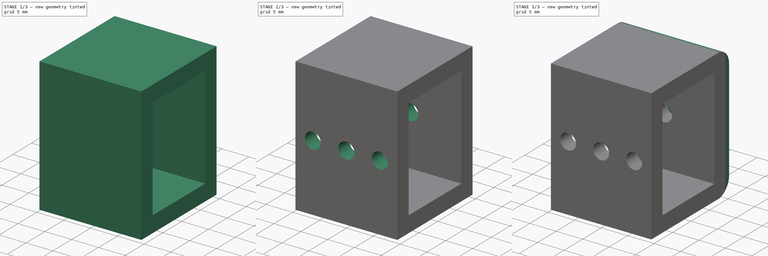
[diagram: build sequence overview — one tinted view per stage of 3, left to right]
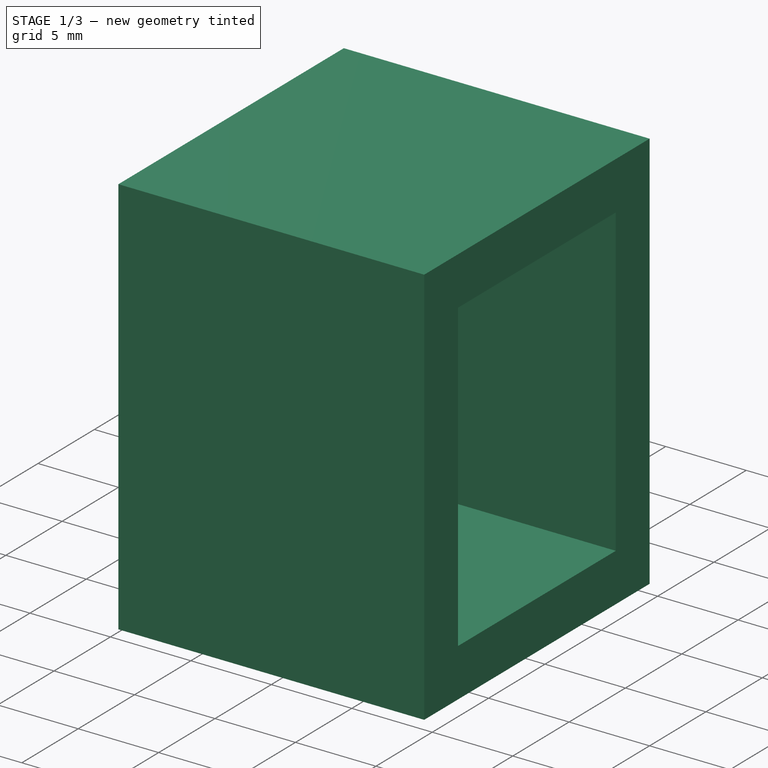
[diagram: stage 1 of 3 — iso view after this stage's code; geometry added in this stage tinted green]
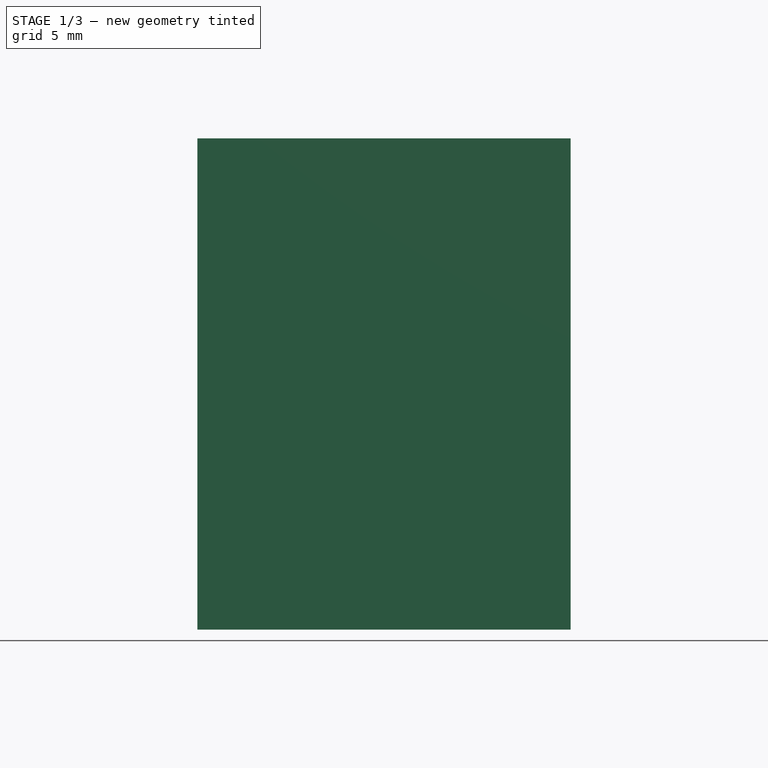
[diagram: stage 1 of 3 — front view after this stage's code; geometry added in this stage tinted green]
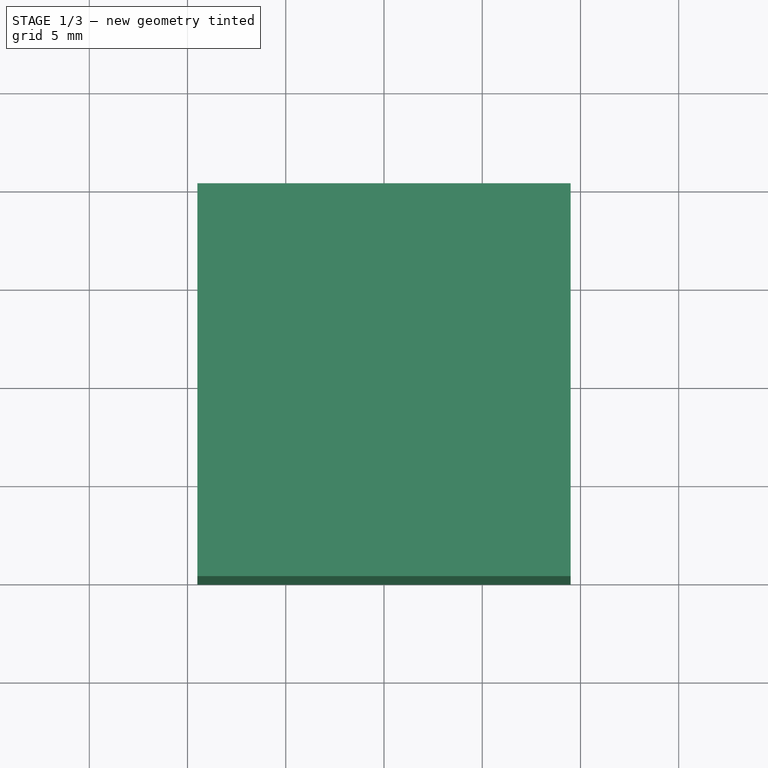
[diagram: stage 1 of 3 — top view after this stage's code; geometry added in this stage tinted green]
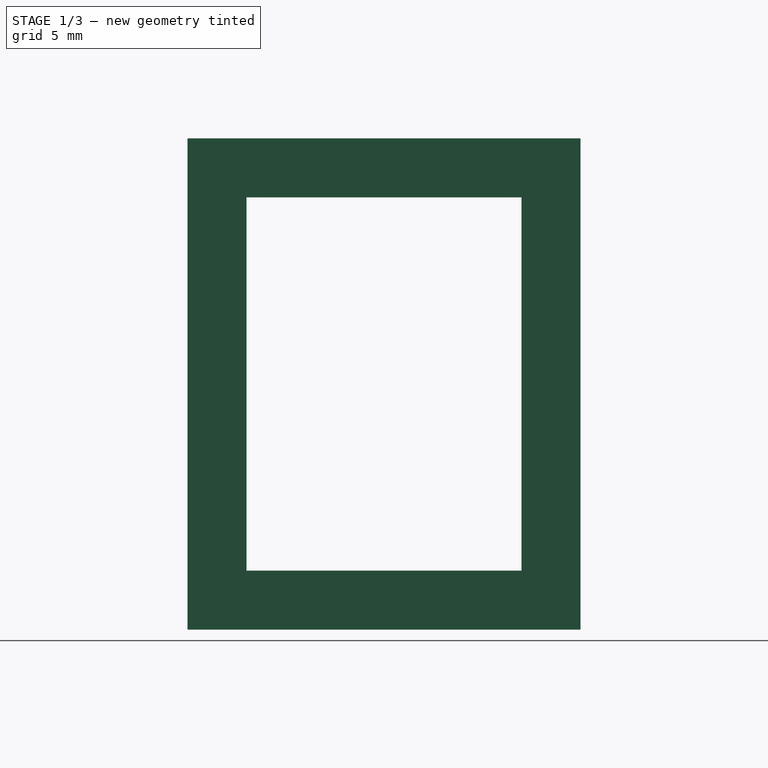
[diagram: stage 1 of 3 — right view after this stage's code; geometry added in this stage tinted green]
FCSTD DOCUMENT  (FreeCAD 0.18R14555 (Git shallow))
Label: idler-mount
License: All rights reserved
LicenseURL: http://en.wikipedia.org/wiki/All_rights_reserved
objects: Sketcher::SketchObject×5, PartDesign::Pocket×3, PartDesign::Pad×2, PartDesign::Thickness×1, PartDesign::Chamfer×1, PartDesign::Body×1
note: 18 computed .brp shape members not serialized (recipe doc carries the construction recipe); baked Part::Feature solids carry a one-line shape summary decoded from their .brp

FEATURE [Sketcher::SketchObject] Sketch
  MapMode = 5
  Support = -> [XY_Plane]
  sketch-geometry (14):
    g0: LineSegment StartX=-9.5 StartY=7 StartZ=0 EndX=9.5 EndY=7 EndZ=0
    g1: LineSegment StartX=9.5 StartY=7 StartZ=0 EndX=9.5 EndY=-7 EndZ=0
    g2: LineSegment StartX=9.5 StartY=-7 StartZ=0 EndX=-9.5 EndY=-7 EndZ=0
    g3: LineSegment StartX=-9.5 StartY=-7 StartZ=0 EndX=-9.5 EndY=7 EndZ=0
    g4: LineSegment [constr] StartX=-9.5 StartY=7 StartZ=0 EndX=0 EndY=-9e-16 EndZ=0
    g5: LineSegment [constr] StartX=0 StartY=0 StartZ=0 EndX=-9.5 EndY=-7 EndZ=0
    g6: LineSegment [constr] StartX=0 StartY=0 StartZ=0 EndX=9.5 EndY=7 EndZ=0
    g7: LineSegment [constr] StartX=-6.5 StartY=4 StartZ=0 EndX=6.5 EndY=4 EndZ=0
    g8: LineSegment [constr] StartX=6.5 StartY=4 StartZ=0 EndX=6.5 EndY=-4 EndZ=0
    g9: LineSegment [constr] StartX=6.5 StartY=-4 StartZ=0 EndX=-6.5 EndY=-4 EndZ=0
    g10: LineSegment [constr] StartX=-6.5 StartY=-4 StartZ=0 EndX=-6.5 EndY=4 EndZ=0
    g11: LineSegment [constr] StartX=0 StartY=0 StartZ=0 EndX=-6.5 EndY=4 EndZ=0
    g12: LineSegment [constr] StartX=0 StartY=0 StartZ=0 EndX=-6.5 EndY=-4 EndZ=0
    g13: LineSegment [constr] StartX=0 StartY=0 StartZ=0 EndX=6.5 EndY=4 EndZ=0
  constraints (36):
    c: Coincident(g0,g1)
    c: Coincident(g1,g2)
    c: Coincident(g2,g3)
    c: Coincident(g3,g0)
    c: Horizontal(g0)
    c: Horizontal(g2)
    c: Vertical(g1)
    c: Vertical(g3)
    c: Coincident(g4,g0)
    c: Coincident(g4,g-1)
    c: Coincident(g5,g-1)
    c: Coincident(g5,g2)
    c: Coincident(g6,g-1)
    c: Coincident(g6,g0)
    c: Equal(g5,g4)
    c: Equal(g4,g6)
    c: Coincident(g7,g8)
    c: Coincident(g8,g9)
    c: Coincident(g9,g10)
    c: Coincident(g10,g7)
    c: Horizontal(g7)
    c: Horizontal(g9)
    c: Vertical(g8)
    c: Vertical(g10)
    c: Coincident(g11,g-1)
    c: Coincident(g11,g7)
    c: Coincident(g12,g-1)
    c: Coincident(g12,g9)
    c: Coincident(g13,g-1)
    c: Coincident(g13,g7)
    c: Equal(g11,g13)
    c: Equal(g13,g12)
    c: DistanceY(g8,g8) = 8
    c: DistanceX(g7,g7) = 13
    c: DistanceY(g7,g0) = 3
    c: DistanceX(g7,g0) = 3
FEATURE [PartDesign::Pad] Pad
  Length = 19
  Length2 = 100
  Profile = -> Sketch
  Type = 0
FEATURE [PartDesign::Thickness] Thickness
  Base = -> Pad [Face4,Face2]
  BaseFeature = -> Pad
  Join = 1
  Mode = 0
  Value = 3
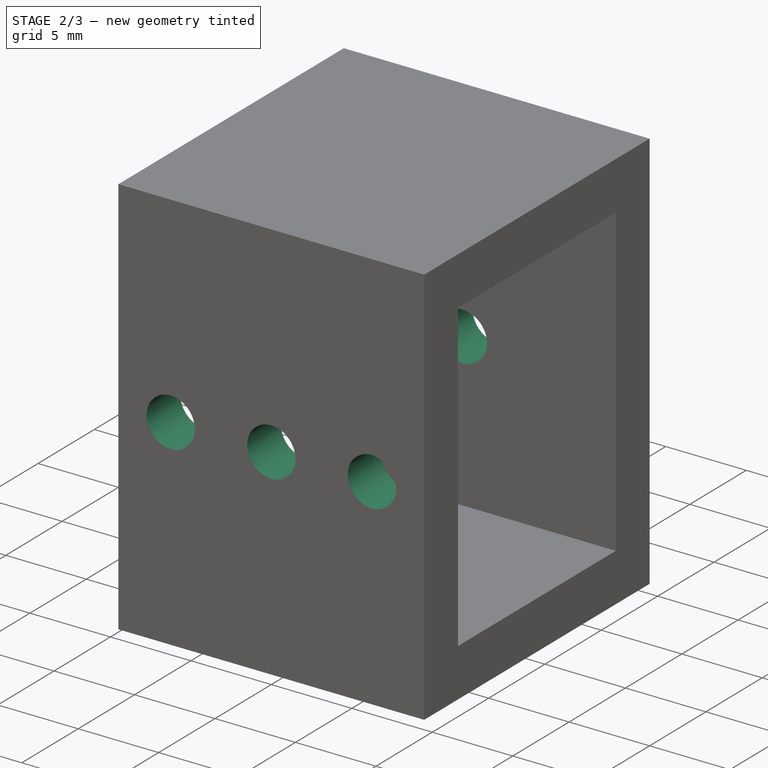
[diagram: stage 2 of 3 — iso view after this stage's code; geometry added in this stage tinted green]
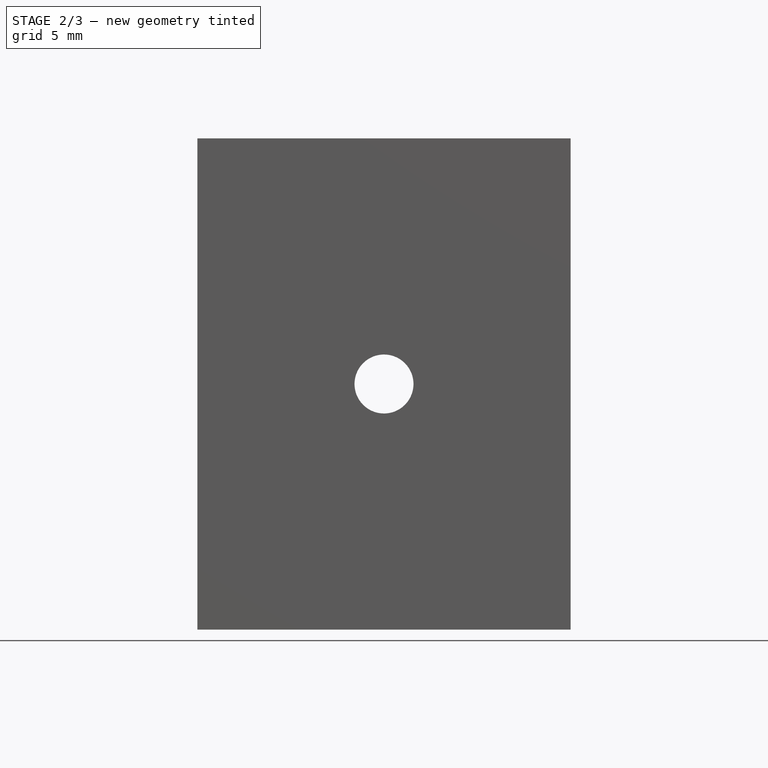
[diagram: stage 2 of 3 — front view after this stage's code; geometry added in this stage tinted green]
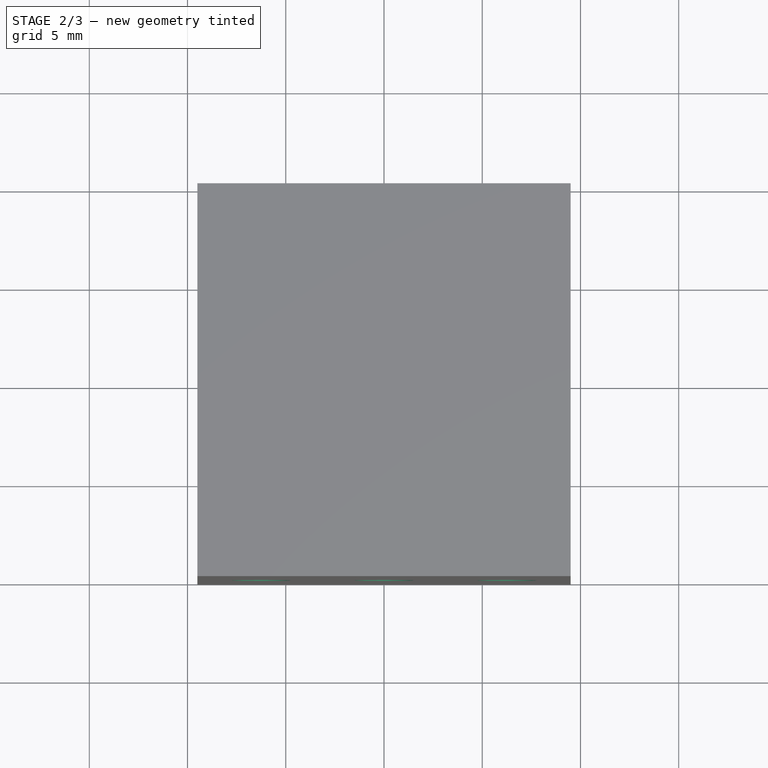
[diagram: stage 2 of 3 — top view after this stage's code; geometry added in this stage tinted green]
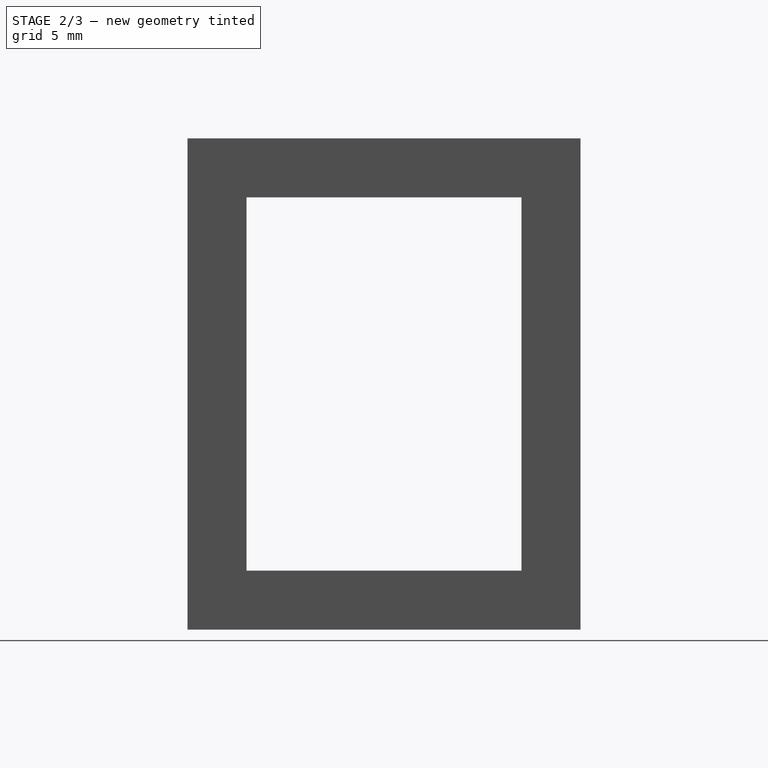
[diagram: stage 2 of 3 — right view after this stage's code; geometry added in this stage tinted green]
FEATURE [Sketcher::SketchObject] Sketch001
  ExternalGeometry = -> [Thickness]
  MapMode = 5
  Placement = pos=(0,-10,0) rot=(1,0,0;1.5708rad)
  Support = -> [Thickness]
  sketch-geometry (3):
    g0: LineSegment [constr] StartX=-9.5 StartY=22 StartZ=0 EndX=9.5 EndY=-3 EndZ=0
    g1: LineSegment [constr] StartX=-9.5 StartY=-3 StartZ=0 EndX=9.5 EndY=22 EndZ=0
    g2: Circle CenterX=-1.283e-13 CenterY=9.5 CenterZ=0 NormalX=0 NormalY=0 NormalZ=1 AngleXU=0 Radius=1.5
  constraints (7):
    c: Coincident(g0,g-3)
    c: Coincident(g0,g-4)
    c: Coincident(g1,g-3)
    c: Coincident(g1,g-4)
    c: PointOnObject(g2,g0)
    c: PointOnObject(g2,g1)
    c: Radius(g2) = 1.5
FEATURE [PartDesign::Pocket] Pocket
  BaseFeature = -> Thickness
  Length = 0
  Length2 = 100
  Profile = -> Sketch001
  Type = 3
  UpToFace = -> Thickness [Face6]
FEATURE [Sketcher::SketchObject] Sketch002
  ExternalGeometry = -> [Pocket]
  MapMode = 5
  Placement = pos=(0,-10,0) rot=(1,0,0;1.5708rad)
  Support = -> [Pocket]
  sketch-geometry (8):
    g0: LineSegment [constr] StartX=-9.5 StartY=22 StartZ=0 EndX=9.5 EndY=-3 EndZ=0
    g1: LineSegment [constr] StartX=-9.5 StartY=-3 StartZ=0 EndX=9.5 EndY=22 EndZ=0
    g2: LineSegment [constr] StartX=-9.5 StartY=9.5 StartZ=0 EndX=9.5 EndY=9.5 EndZ=0
    g3: GeomPoint X=-1.279e-13 Y=9.5 Z=0
    g4: Circle CenterX=-6.25 CenterY=9.5 CenterZ=0 NormalX=0 NormalY=0 NormalZ=1 AngleXU=0 Radius=1.5
    g5: Circle CenterX=6.25 CenterY=9.5 CenterZ=0 NormalX=0 NormalY=0 NormalZ=1 AngleXU=0 Radius=1.5
    g6: LineSegment [constr] StartX=-6.25 StartY=9.5 StartZ=0 EndX=-9.5 EndY=22 EndZ=0
    g7: LineSegment [constr] StartX=9.5 StartY=22 StartZ=0 EndX=6.25 EndY=9.5 EndZ=0
  constraints (20):
    c: Coincident(g0,g-3)
    c: Coincident(g0,g-4)
    c: Coincident(g1,g-4)
    c: Coincident(g1,g-3)
    c: PointOnObject(g2,g-3)
    c: PointOnObject(g2,g-4)
    c: Horizontal(g2)
    c: PointOnObject(g3,g0)
    c: PointOnObject(g3,g1)
    c: PointOnObject(g3,g2)
    c: PointOnObject(g4,g2)
    c: PointOnObject(g5,g2)
    c: Coincident(g6,g0)
    c: Coincident(g7,g1)
    c: Coincident(g7,g5)
    c: Coincident(g6,g4)
    c: Equal(g4,g5)
    c: Radius(g4) = 1.5
    c: Equal(g6,g7)
    c: DistanceX(g4,g5) = 12.5
FEATURE [PartDesign::Pocket] Pocket001
  BaseFeature = -> Pocket
  Length = 3
  Length2 = 100
  Profile = -> Sketch002
  Type = 0
FEATURE [PartDesign::Chamfer] Chamfer
  Base = -> Pocket001 [Edge7,Edge8,Edge1,Edge6]
  BaseFeature = -> Pocket001
  Size = 1.5
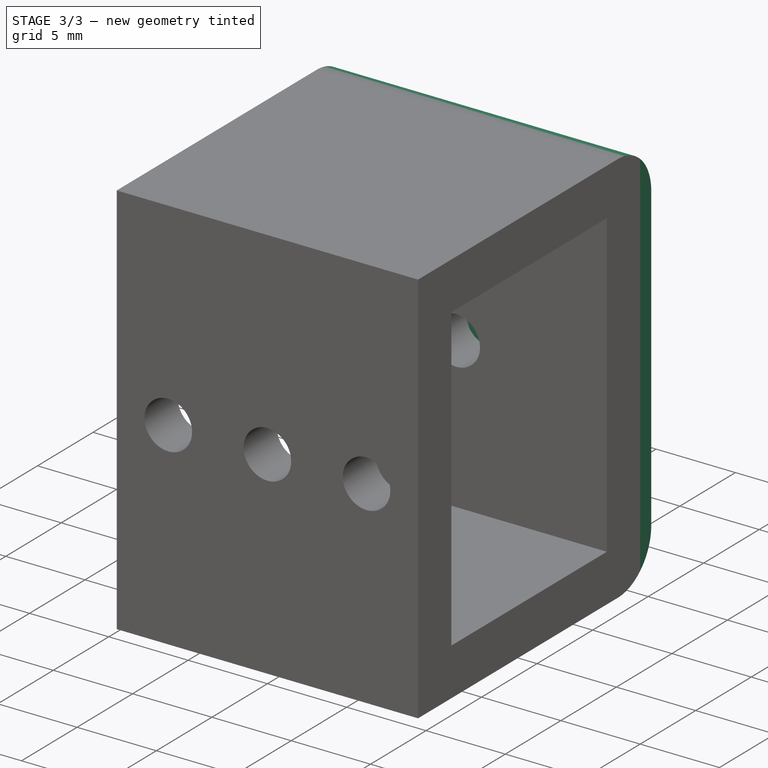
[diagram: stage 3 of 3 — iso view after this stage's code; geometry added in this stage tinted green]
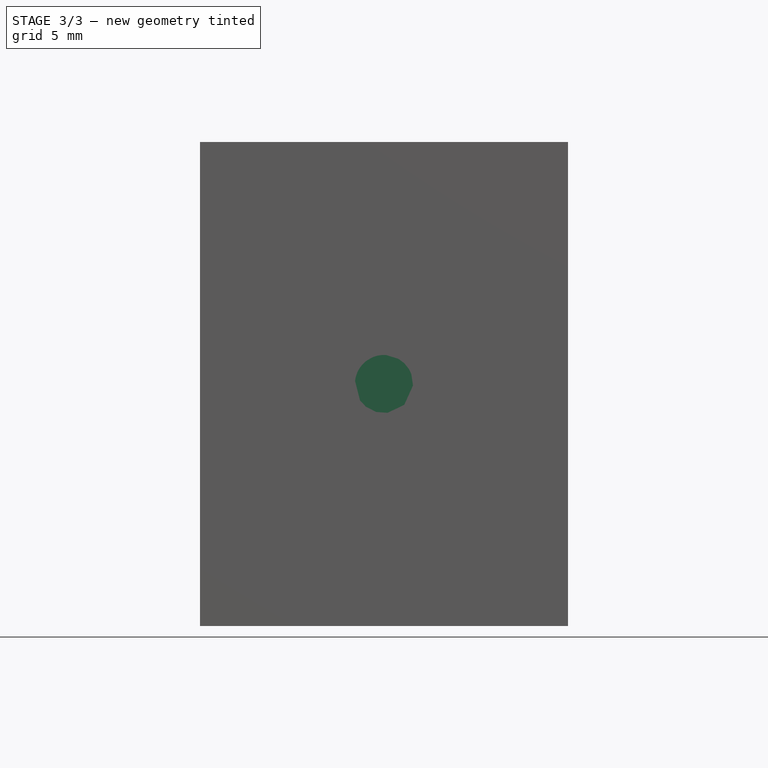
[diagram: stage 3 of 3 — front view after this stage's code; geometry added in this stage tinted green]
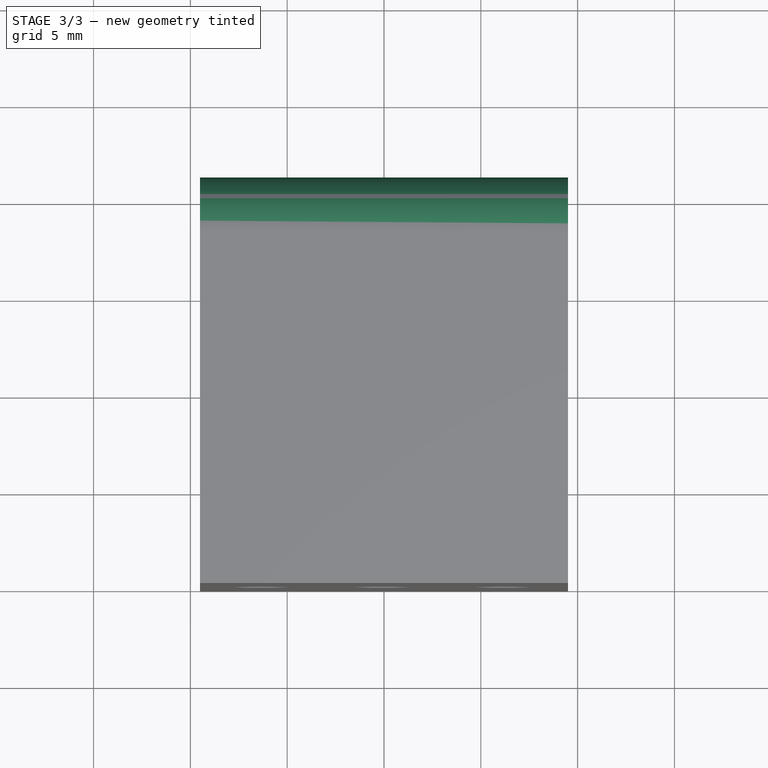
[diagram: stage 3 of 3 — top view after this stage's code; geometry added in this stage tinted green]
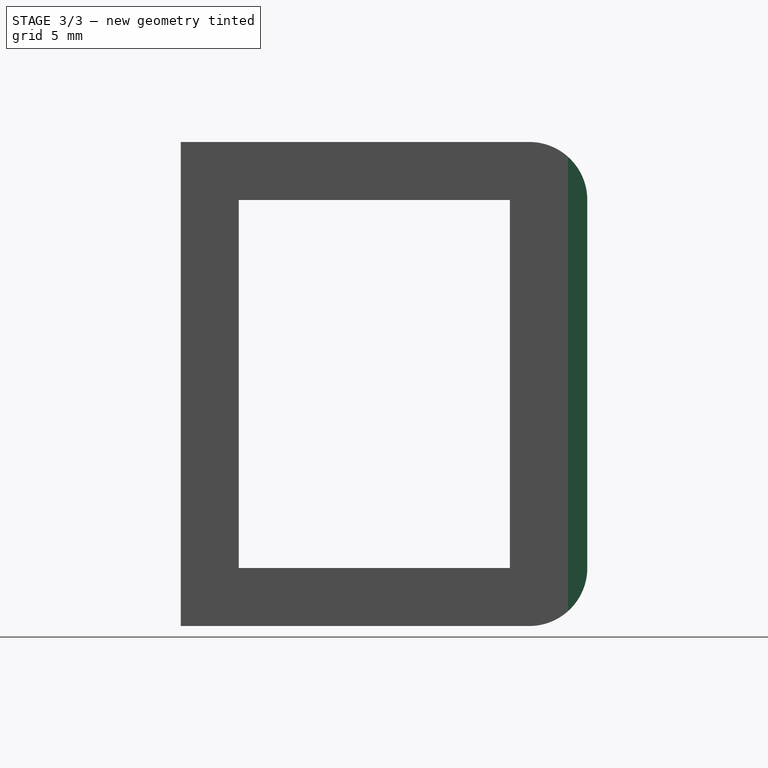
[diagram: stage 3 of 3 — right view after this stage's code; geometry added in this stage tinted green]
FEATURE [Sketcher::SketchObject] Sketch003
  ExternalGeometry = -> [Chamfer]
  MapMode = 5
  Placement = pos=(0,10,0) rot=(0,0.707107,0.707107;3.14159rad)
  Support = -> [Chamfer]
  sketch-geometry (4):
    g0: LineSegment StartX=-9.5 StartY=22 StartZ=0 EndX=9.5 EndY=22 EndZ=0
    g1: LineSegment StartX=9.5 StartY=22 StartZ=0 EndX=9.5 EndY=-3 EndZ=0
    g2: LineSegment StartX=9.5 StartY=-3 StartZ=0 EndX=-9.5 EndY=-3 EndZ=0
    g3: LineSegment StartX=-9.5 StartY=-3 StartZ=0 EndX=-9.5 EndY=22 EndZ=0
  constraints (10):
    c: Coincident(g0,g1)
    c: Coincident(g1,g2)
    c: Coincident(g2,g3)
    c: Coincident(g3,g0)
    c: Horizontal(g0)
    c: Horizontal(g2)
    c: Vertical(g1)
    c: Vertical(g3)
    c: Coincident(g0,g-3)
    c: Coincident(g1,g-4)
FEATURE [PartDesign::Pad] Pad001
  BaseFeature = -> Chamfer
  Length = 1
  Length2 = 100
  Profile = -> Sketch003
  Type = 0
FEATURE [Sketcher::SketchObject] Sketch004
  ExternalGeometry = -> [Pad001]
  MapMode = 5
  Placement = pos=(9.5,0,0) rot=(0.57735,0.57735,0.57735;2.0944rad)
  Support = -> [Pad001]
  sketch-geometry (7):
    g0: ArcOfCircle CenterX=8 CenterY=19 CenterZ=0 NormalX=0 NormalY=0 NormalZ=1 AngleXU=0 Radius=3 StartAngle=1.12e-13 EndAngle=1.5708
    g1: ArcOfCircle CenterX=8 CenterY=4.15419e-11 CenterZ=0 NormalX=0 NormalY=0 NormalZ=1 AngleXU=0 Radius=3 StartAngle=4.71239 EndAngle=6.28319
    g2: LineSegment [constr] StartX=8 StartY=19 StartZ=0 EndX=8 EndY=4.15419e-11 EndZ=0
    g3: LineSegment StartX=8 StartY=22 StartZ=0 EndX=11 EndY=22 EndZ=0
    g4: LineSegment StartX=11 StartY=22 StartZ=0 EndX=11 EndY=19 EndZ=0
    g5: LineSegment StartX=11 StartY=4.15421e-11 StartZ=0 EndX=11 EndY=-3 EndZ=0
    g6: LineSegment StartX=8 StartY=-3 StartZ=0 EndX=11 EndY=-3 EndZ=0
  constraints (16):
    c: Coincident(g2,g0)
    c: Coincident(g2,g1)
    c: Vertical(g2)
    c: Tangent(g0,g-3) = -1.5708
    c: Tangent(g0,g-4) = 1.5708
    c: Tangent(g1,g-5) = -1.5708
    c: Tangent(g1,g-3) = -1.5708
    c: Coincident(g3,g0)
    c: Coincident(g3,g-3)
    c: Coincident(g4,g3)
    c: Coincident(g4,g0)
    c: Coincident(g5,g1)
    c: Coincident(g5,g-3)
    c: Coincident(g6,g1)
    c: Coincident(g6,g5)
    c: Radius(g0) = 3
FEATURE [PartDesign::Pocket] Pocket002
  BaseFeature = -> Pad001
  Length = 24
  Length2 = 100
  Profile = -> Sketch004
  Type = 0
FEATURE [PartDesign::Body] Body  label="idler-mount"
  Group = -> [Sketch,Pad,Thickness,Sketch001,Pocket,Sketch002,Pocket001,Chamfer,Sketch003,Pad001,Sketch004,Pocket002]
  Origin = -> Origin
  Tip = -> Pocket002
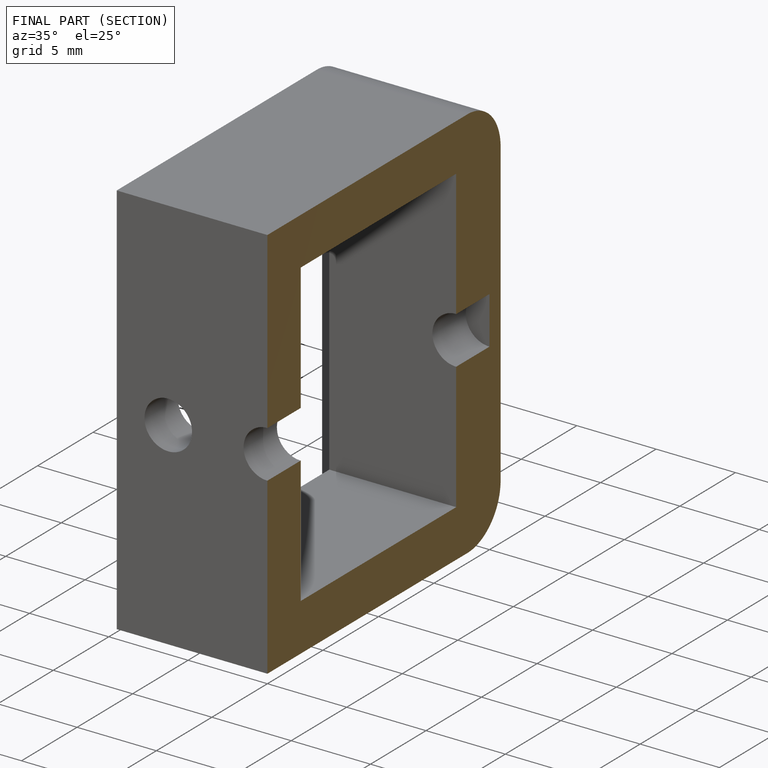
[diagram: finished part — half-section view (interior)]
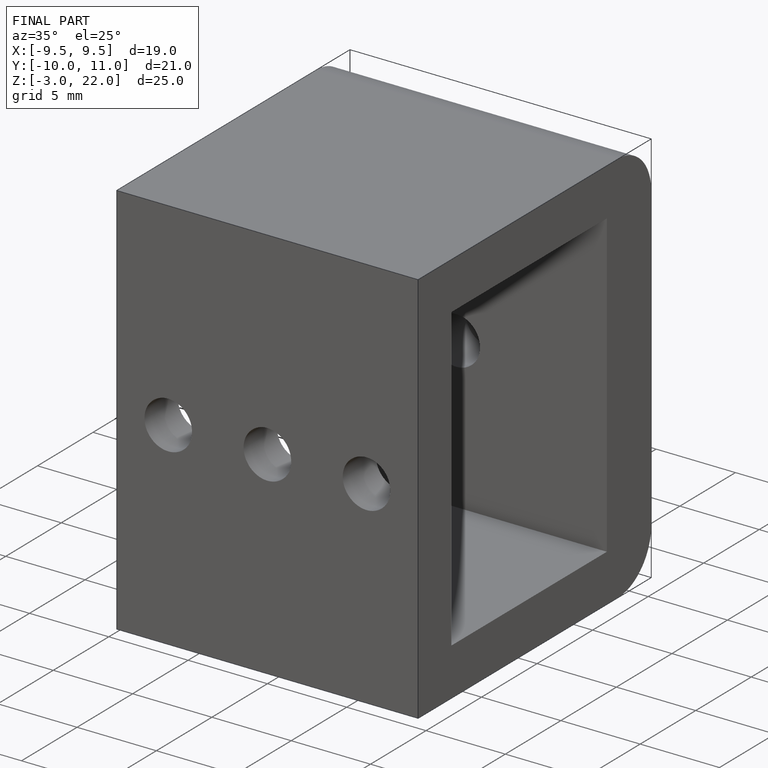
[diagram: finished part — iso view with bounding-box wireframe]
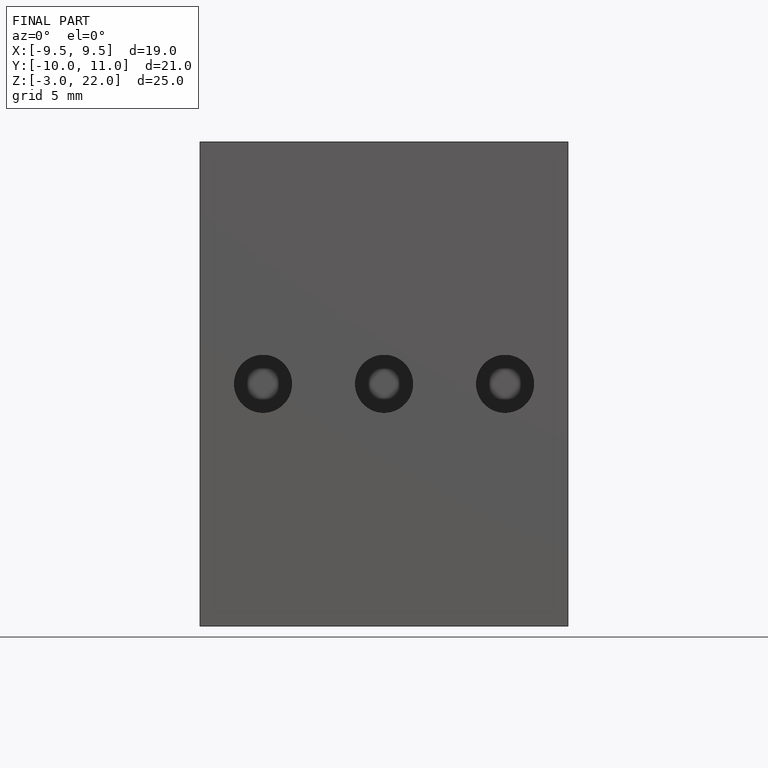
[diagram: finished part — front view with bounding-box wireframe]
